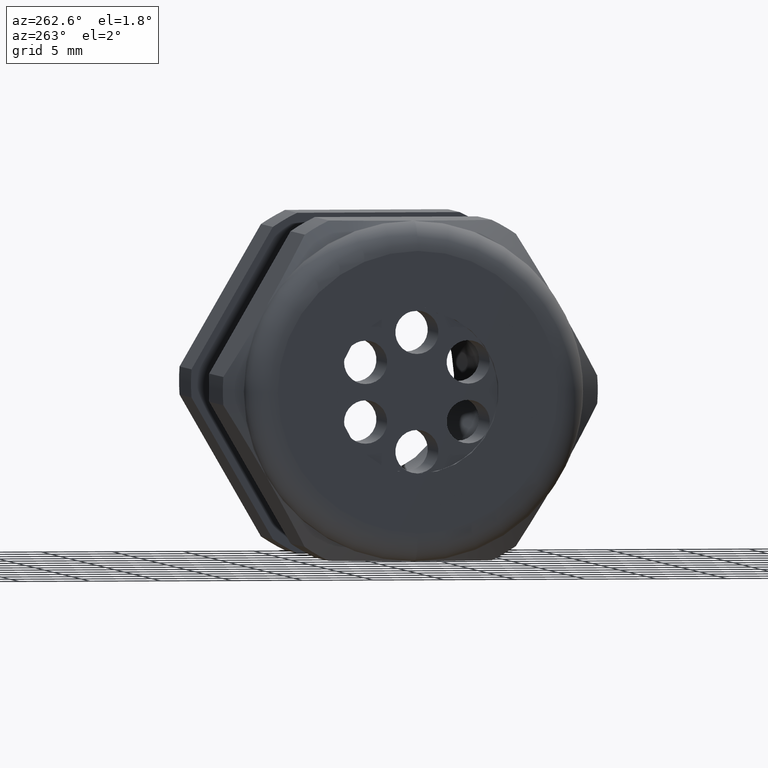
[diagram: clean part render]
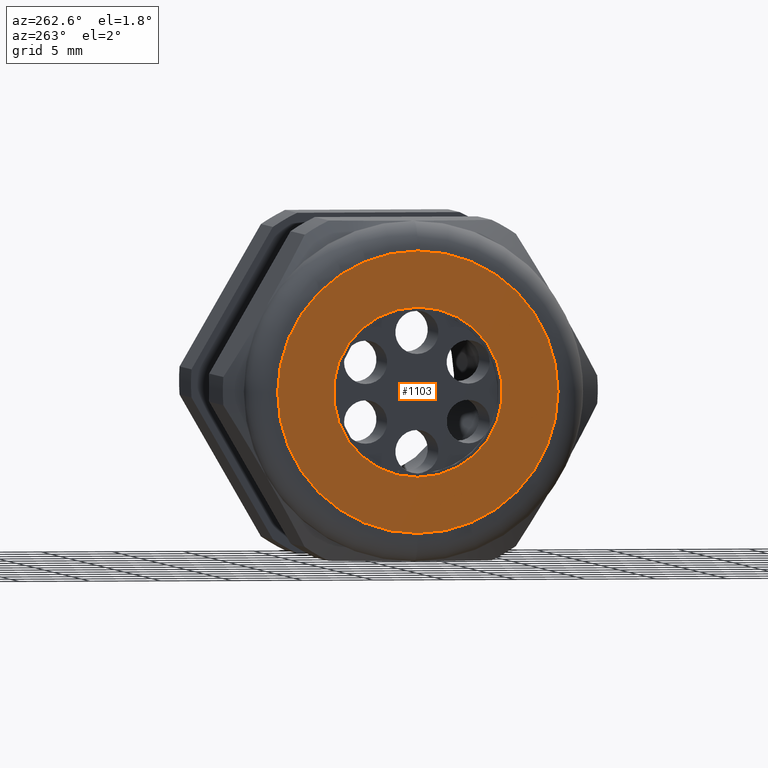
[diagram: same view with one face highlighted and labeled with its STEP entity id]
A machine part, auxiliary view. The second image highlights one B-rep face of the part: STEP entity #1103.
In plain terms, the highlighted planar face has unit normal (-1, 0, 0).
Its self-contained STEP definition (entity closure, byte-faithful):
#550 = VERTEX_POINT ( 'NONE', #2732 ) ;
#552 = EDGE_CURVE ( 'NONE', #553, #550, #2793, .T. ) ;
#553 = VERTEX_POINT ( 'NONE', #2788 ) ;
#611 = EDGE_CURVE ( 'NONE', #612, #613, #2868, .T. ) ;
#612 = VERTEX_POINT ( 'NONE', #2859 ) ;
#613 = VERTEX_POINT ( 'NONE', #2858 ) ;
#1100 = EDGE_CURVE ( 'NONE', #613, #612, #3874, .T. ) ;
#1103 = ADVANCED_FACE ( 'NONE', ( #3869, #3868 ), #3867, .T. ) ;
#1104 = EDGE_LOOP ( 'NONE', ( #1105, #1106 ) ) ;
#1105 = ORIENTED_EDGE ( 'NONE', *, *, #552, .T. ) ;
#1106 = ORIENTED_EDGE ( 'NONE', *, *, #1107, .T. ) ;
#1107 = EDGE_CURVE ( 'NONE', #550, #553, #3862, .T. ) ;
#1108 = EDGE_LOOP ( 'NONE', ( #1109, #1110 ) ) ;
#1109 = ORIENTED_EDGE ( 'NONE', *, *, #1100, .T. ) ;
#1110 = ORIENTED_EDGE ( 'NONE', *, *, #611, .T. ) ;
#2732 = CARTESIAN_POINT ( 'NONE',  ( -1.409999999999999900, 5.265981236333617600E-017, -0.3899999999999999600 ) ) ;
#2788 = CARTESIAN_POINT ( 'NONE',  ( -1.409999999999999900, 0.0000000000000000000, 0.3899999999999999600 ) ) ;
#2789 = DIRECTION ( 'NONE',  ( 0.0000000000000000000, 0.0000000000000000000, 1.000000000000000000 ) ) ;
#2790 = DIRECTION ( 'NONE',  ( -1.000000000000000000, 0.0000000000000000000, 0.0000000000000000000 ) ) ;
#2791 = CARTESIAN_POINT ( 'NONE',  ( -1.409999999999999900, 0.0000000000000000000, 0.0000000000000000000 ) ) ;
#2792 = AXIS2_PLACEMENT_3D ( 'NONE', #2791, #2790, #2789 ) ;
#2793 = CIRCLE ( 'NONE', #2792, 0.3899999999999999600 ) ;
#2858 = CARTESIAN_POINT ( 'NONE',  ( -1.409999999999999900, 0.0000000000000000000, -0.2349999999999999900 ) ) ;
#2859 = CARTESIAN_POINT ( 'NONE',  ( -1.409999999999999900, 2.877919977996279800E-017, 0.2349999999999999900 ) ) ;
#2860 = DIRECTION ( 'NONE',  ( 0.0000000000000000000, 0.0000000000000000000, -1.000000000000000000 ) ) ;
#2861 = DIRECTION ( 'NONE',  ( 1.000000000000000000, 0.0000000000000000000, 0.0000000000000000000 ) ) ;
#2862 = CARTESIAN_POINT ( 'NONE',  ( -1.409999999999999900, 0.0000000000000000000, 0.0000000000000000000 ) ) ;
#2863 = AXIS2_PLACEMENT_3D ( 'NONE', #2862, #2861, #2860 ) ;
#2868 = CIRCLE ( 'NONE', #2863, 0.2349999999999999900 ) ;
#3858 = DIRECTION ( 'NONE',  ( 0.0000000000000000000, 0.0000000000000000000, 1.000000000000000000 ) ) ;
#3859 = DIRECTION ( 'NONE',  ( -1.000000000000000000, 0.0000000000000000000, 0.0000000000000000000 ) ) ;
#3860 = CARTESIAN_POINT ( 'NONE',  ( -1.409999999999999900, 0.0000000000000000000, 0.0000000000000000000 ) ) ;
#3861 = AXIS2_PLACEMENT_3D ( 'NONE', #3860, #3859, #3858 ) ;
#3862 = CIRCLE ( 'NONE', #3861, 0.3899999999999999600 ) ;
#3863 = DIRECTION ( 'NONE',  ( 0.0000000000000000000, 0.0000000000000000000, 1.000000000000000000 ) ) ;
#3864 = DIRECTION ( 'NONE',  ( -1.000000000000000000, 0.0000000000000000000, 0.0000000000000000000 ) ) ;
#3865 = CARTESIAN_POINT ( 'NONE',  ( -1.409999999999999900, 0.4699999999999999200, 0.0000000000000000000 ) ) ;
#3866 = AXIS2_PLACEMENT_3D ( 'NONE', #3865, #3864, #3863 ) ;
#3867 = PLANE ( 'NONE',  #3866 ) ;
#3868 = FACE_BOUND ( 'NONE', #1108, .T. ) ;
#3869 = FACE_OUTER_BOUND ( 'NONE', #1104, .T. ) ;
#3870 = DIRECTION ( 'NONE',  ( 0.0000000000000000000, 0.0000000000000000000, -1.000000000000000000 ) ) ;
#3871 = DIRECTION ( 'NONE',  ( 1.000000000000000000, 0.0000000000000000000, 0.0000000000000000000 ) ) ;
#3872 = CARTESIAN_POINT ( 'NONE',  ( -1.409999999999999900, 0.0000000000000000000, 0.0000000000000000000 ) ) ;
#3873 = AXIS2_PLACEMENT_3D ( 'NONE', #3872, #3871, #3870 ) ;
#3874 = CIRCLE ( 'NONE', #3873, 0.2349999999999999900 ) ;